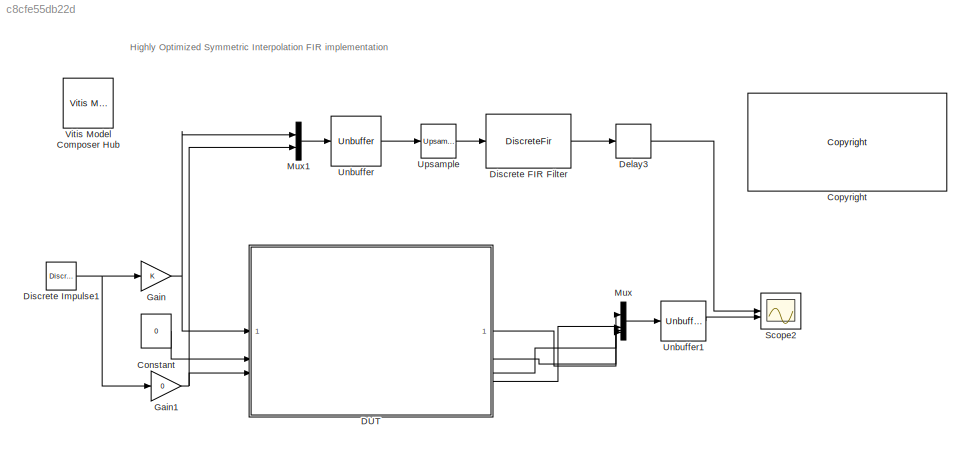
MODEL slx_c8cfe55db22d
KIND model
CONFIG AbsTol = auto
CONFIG EnableMultiTasking = off
CONFIG FixedStep = auto
CONFIG InitFcn = coef=[-58,15,80,95,52,-27,-89,-96,-43,38,97,95,32,-53,-104,-90,-18,67,109,83,1,-80,-111,-69,16,94,109,54,-38,-106,-104,-32,62,117,95,7,-89,-127,-80,23,117,134,60,-60,-148,-139,-35,102,179,140,1,-150,-213,-137,38,205,249,130,-89,-269,-286,-117,146,337,323,97,-216,-415,-362,-69,295,501,402,34,-390,-598,-440,13,497,704,479,-71,-621,-824,-517,143,766,955,554,-232,-935,-1106,-589,341,1132,1275,623,-477...<+4264ch>
CONFIG MaxStep = auto
CONFIG MinStep = auto
CONFIG RelTol = 1e-3
CONFIG SampleTimeConstraint = Unconstrained
CONFIG SolverName = VariableStepAuto
CONFIG StartTime = 0.0
CONFIG StopTime = 300E-9
BLOCK [Constant] Constant
  SampleTime = -1
  Value = 0
  VectorParams1D = off
BLOCK [Reference] <copyright redacted>
  SourceBlock = hdlUtilities/<copyright redacted>
  SourceType = Xilinx <copyright redacted>
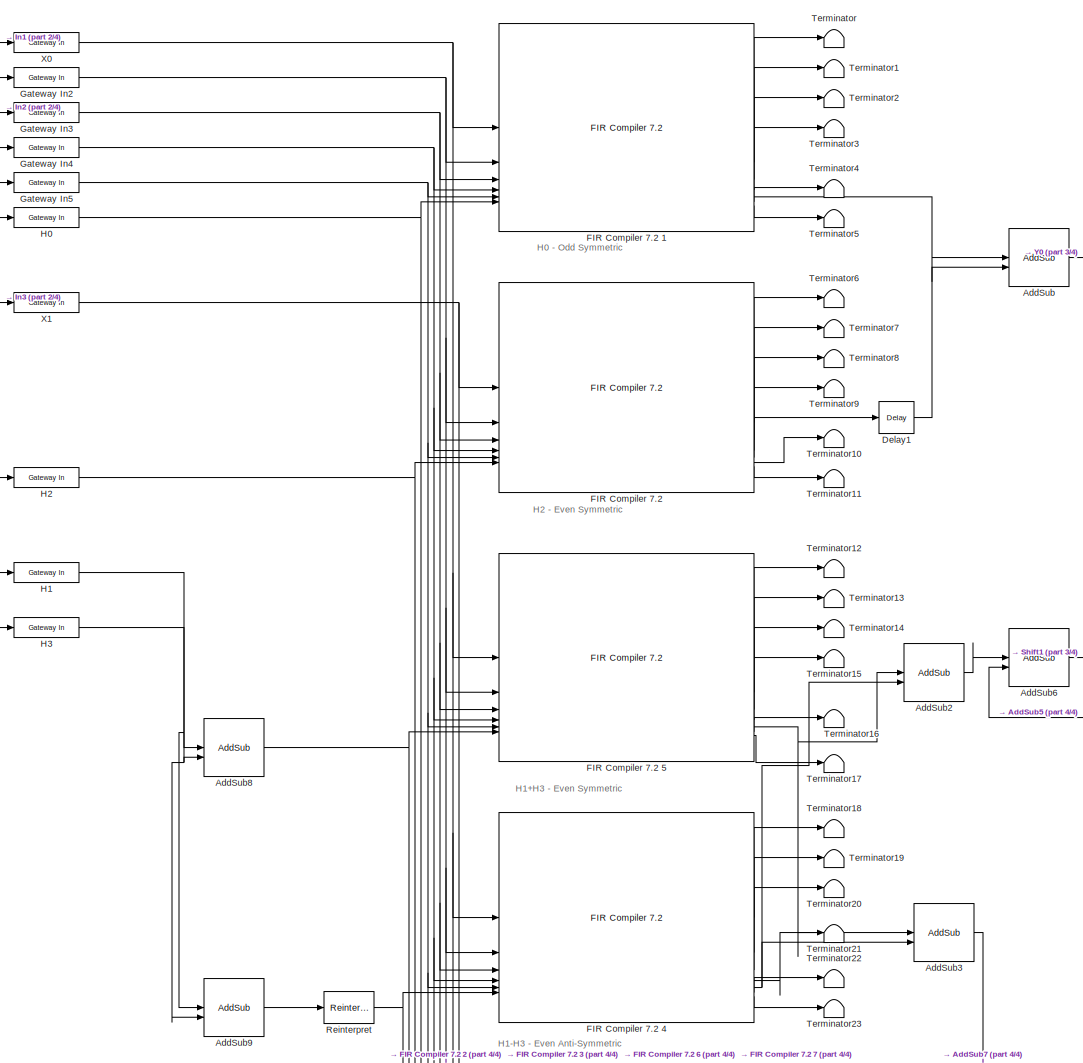
[diagram: DUT - part 1/4, top center region]
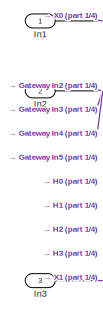
[diagram: DUT - part 2/4, top left region]
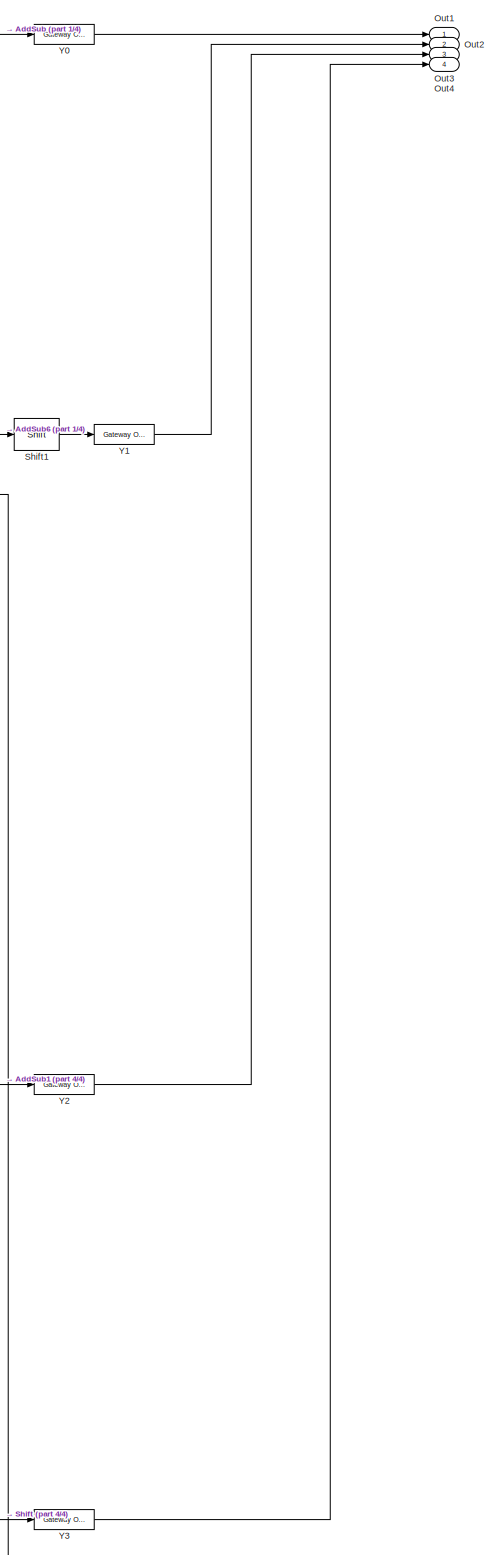
[diagram: DUT - part 3/4, middle right region]
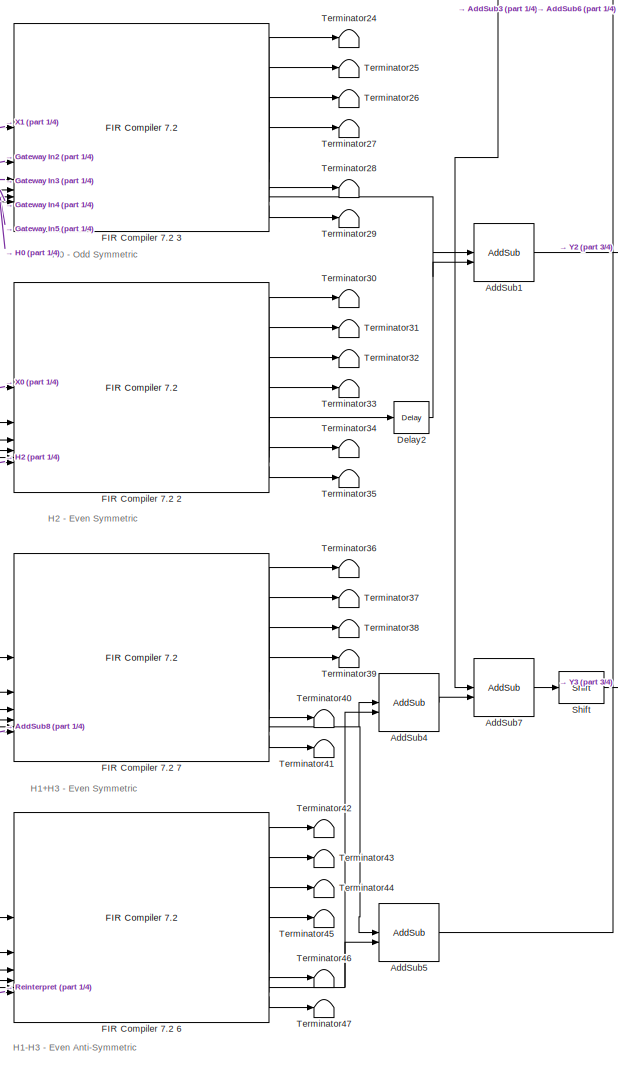
[diagram: DUT - part 4/4, bottom center region]
BLOCK [SubSystem] DUT
BLOCK [Reference] DUT/AddSub  REF=hdlBasic/AddSub
  SourceBlock = hdlBasic/AddSub
  SourceType = Adder/Subtracter Block
BLOCK [Reference] DUT/AddSub1  REF=hdlBasic/AddSub
  SourceBlock = hdlBasic/AddSub
  SourceType = Adder/Subtracter Block
BLOCK [Reference] DUT/AddSub2  REF=hdlBasic/AddSub
  SourceBlock = hdlBasic/AddSub
  SourceType = Adder/Subtracter Block
BLOCK [Reference] DUT/AddSub3  REF=hdlBasic/AddSub
  SourceBlock = hdlBasic/AddSub
  SourceType = Adder/Subtracter Block
BLOCK [Reference] DUT/AddSub4  REF=hdlBasic/AddSub
  SourceBlock = hdlBasic/AddSub
  SourceType = Adder/Subtracter Block
BLOCK [Reference] DUT/AddSub5  REF=hdlBasic/AddSub
  SourceBlock = hdlBasic/AddSub
  SourceType = Adder/Subtracter Block
BLOCK [Reference] DUT/AddSub6  REF=hdlBasic/AddSub
  SourceBlock = hdlBasic/AddSub
  SourceType = Adder/Subtracter Block
BLOCK [Reference] DUT/AddSub7  REF=hdlBasic/AddSub
  SourceBlock = hdlBasic/AddSub
  SourceType = Adder/Subtracter Block
BLOCK [Reference] DUT/AddSub8  REF=hdlBasic/AddSub
  SourceBlock = hdlBasic/AddSub
  SourceType = Adder/Subtracter Block
BLOCK [Reference] DUT/AddSub9  REF=hdlBasic/AddSub
  SourceBlock = hdlBasic/AddSub
  SourceType = Adder/Subtracter Block
BLOCK [Reference] DUT/Delay1  REF=hdlBasic/Delay
  SourceBlock = hdlBasic/Delay
  SourceType = Delay Block
BLOCK [Reference] DUT/Delay2  REF=hdlBasic/Delay
  SourceBlock = hdlBasic/Delay
  SourceType = Delay Block
BLOCK [Reference] DUT/FIR Compiler 7.2   REF=hdlDSPIP/FIR Compiler 7.2 
  SourceBlock = hdlDSPIP/FIR Compiler 7.2
  SourceType = FIR Compiler 7.2 Block
BLOCK [Reference] DUT/FIR Compiler 7.2 1  REF=hdlDSPIP/FIR Compiler 7.2 
  SourceBlock = hdlDSPIP/FIR Compiler 7.2
  SourceType = FIR Compiler 7.2 Block
BLOCK [Reference] DUT/FIR Compiler 7.2 2  REF=hdlDSPIP/FIR Compiler 7.2 
  SourceBlock = hdlDSPIP/FIR Compiler 7.2
  SourceType = FIR Compiler 7.2 Block
BLOCK [Reference] DUT/FIR Compiler 7.2 3  REF=hdlDSPIP/FIR Compiler 7.2 
  SourceBlock = hdlDSPIP/FIR Compiler 7.2
  SourceType = FIR Compiler 7.2 Block
BLOCK [Reference] DUT/FIR Compiler 7.2 4  REF=hdlDSPIP/FIR Compiler 7.2 
  SourceBlock = hdlDSPIP/FIR Compiler 7.2
  SourceType = FIR Compiler 7.2 Block
BLOCK [Reference] DUT/FIR Compiler 7.2 5  REF=hdlDSPIP/FIR Compiler 7.2 
  SourceBlock = hdlDSPIP/FIR Compiler 7.2
  SourceType = FIR Compiler 7.2 Block
BLOCK [Reference] DUT/FIR Compiler 7.2 6  REF=hdlDSPIP/FIR Compiler 7.2 
  SourceBlock = hdlDSPIP/FIR Compiler 7.2
  SourceType = FIR Compiler 7.2 Block
BLOCK [Reference] DUT/FIR Compiler 7.2 7  REF=hdlDSPIP/FIR Compiler 7.2 
  SourceBlock = hdlDSPIP/FIR Compiler 7.2
  SourceType = FIR Compiler 7.2 Block
BLOCK [Reference] DUT/Gateway In2  REF=hdlBasic/Gateway In
  SourceBlock = hdlBasic/Gateway In
  SourceType = Gateway In Block
BLOCK [Reference] DUT/Gateway In3  REF=hdlBasic/Gateway In
  SourceBlock = hdlBasic/Gateway In
  SourceType = Gateway In Block
BLOCK [Reference] DUT/Gateway In4  REF=hdlBasic/Gateway In
  SourceBlock = hdlBasic/Gateway In
  SourceType = Gateway In Block
BLOCK [Reference] DUT/Gateway In5  REF=hdlBasic/Gateway In
  SourceBlock = hdlBasic/Gateway In
  SourceType = Gateway In Block
BLOCK [Reference] DUT/H0  REF=hdlBasic/Gateway In
  SourceBlock = hdlBasic/Gateway In
  SourceType = Gateway In Block
BLOCK [Reference] DUT/H1  REF=hdlBasic/Gateway In
  SourceBlock = hdlBasic/Gateway In
  SourceType = Gateway In Block
BLOCK [Reference] DUT/H2  REF=hdlBasic/Gateway In
  SourceBlock = hdlBasic/Gateway In
  SourceType = Gateway In Block
BLOCK [Reference] DUT/H3  REF=hdlBasic/Gateway In
  SourceBlock = hdlBasic/Gateway In
  SourceType = Gateway In Block
BLOCK [Inport] DUT/In1
BLOCK [Inport] DUT/In2
  Port = 2
BLOCK [Inport] DUT/In3
  Port = 3
BLOCK [Outport] DUT/Out1
BLOCK [Outport] DUT/Out2
  Port = 2
BLOCK [Outport] DUT/Out3
  Port = 3
BLOCK [Outport] DUT/Out4
  Port = 4
BLOCK [Reference] DUT/Reinterpret  REF=hdlBasic/Reinterpret
  SourceBlock = hdlBasic/Reinterpret
  SourceType = Type Reinterpreter Block
BLOCK [Reference] DUT/Shift  REF=hdlBasic/Shift
  SourceBlock = hdlBasic/Shift
  SourceType = Binary Shift Operator Block
BLOCK [Reference] DUT/Shift1  REF=hdlBasic/Shift
  SourceBlock = hdlBasic/Shift
  SourceType = Binary Shift Operator Block
BLOCK [Terminator] DUT/Terminator
BLOCK [Terminator] DUT/Terminator1
BLOCK [Terminator] DUT/Terminator10
BLOCK [Terminator] DUT/Terminator11
BLOCK [Terminator] DUT/Terminator12
BLOCK [Terminator] DUT/Terminator13
BLOCK [Terminator] DUT/Terminator14
BLOCK [Terminator] DUT/Terminator15
BLOCK [Terminator] DUT/Terminator16
BLOCK [Terminator] DUT/Terminator17
BLOCK [Terminator] DUT/Terminator18
BLOCK [Terminator] DUT/Terminator19
BLOCK [Terminator] DUT/Terminator2
BLOCK [Terminator] DUT/Terminator20
BLOCK [Terminator] DUT/Terminator21
BLOCK [Terminator] DUT/Terminator22
BLOCK [Terminator] DUT/Terminator23
BLOCK [Terminator] DUT/Terminator24
BLOCK [Terminator] DUT/Terminator25
BLOCK [Terminator] DUT/Terminator26
BLOCK [Terminator] DUT/Terminator27
BLOCK [Terminator] DUT/Terminator28
BLOCK [Terminator] DUT/Terminator29
BLOCK [Terminator] DUT/Terminator3
BLOCK [Terminator] DUT/Terminator30
BLOCK [Terminator] DUT/Terminator31
BLOCK [Terminator] DUT/Terminator32
BLOCK [Terminator] DUT/Terminator33
BLOCK [Terminator] DUT/Terminator34
BLOCK [Terminator] DUT/Terminator35
BLOCK [Terminator] DUT/Terminator36
BLOCK [Terminator] DUT/Terminator37
BLOCK [Terminator] DUT/Terminator38
BLOCK [Terminator] DUT/Terminator39
BLOCK [Terminator] DUT/Terminator4
BLOCK [Terminator] DUT/Terminator40
BLOCK [Terminator] DUT/Terminator41
BLOCK [Terminator] DUT/Terminator42
BLOCK [Terminator] DUT/Terminator43
BLOCK [Terminator] DUT/Terminator44
BLOCK [Terminator] DUT/Terminator45
BLOCK [Terminator] DUT/Terminator46
BLOCK [Terminator] DUT/Terminator47
BLOCK [Terminator] DUT/Terminator5
BLOCK [Terminator] DUT/Terminator6
BLOCK [Terminator] DUT/Terminator7
BLOCK [Terminator] DUT/Terminator8
BLOCK [Terminator] DUT/Terminator9
BLOCK [Reference] DUT/X0  REF=hdlBasic/Gateway In
  SourceBlock = hdlBasic/Gateway In
  SourceType = Gateway In Block
BLOCK [Reference] DUT/X1  REF=hdlBasic/Gateway In
  SourceBlock = hdlBasic/Gateway In
  SourceType = Gateway In Block
BLOCK [Reference] DUT/Y0  REF=hdlBasic/Gateway Out
  SourceBlock = hdlBasic/Gateway Out
  SourceType = Gateway Out Block
BLOCK [Reference] DUT/Y1  REF=hdlBasic/Gateway Out
  SourceBlock = hdlBasic/Gateway Out
  SourceType = Gateway Out Block
BLOCK [Reference] DUT/Y2  REF=hdlBasic/Gateway Out
  SourceBlock = hdlBasic/Gateway Out
  SourceType = Gateway Out Block
BLOCK [Reference] DUT/Y3  REF=hdlBasic/Gateway Out
  SourceBlock = hdlBasic/Gateway Out
  SourceType = Gateway Out Block
BLOCK [Delay] Delay3
  DelayLength = 188
  InputPortMap = u0
BLOCK [DiscreteFir] Discrete FIR Filter
  Coefficients = coef(:,1)'
  InputPortMap = u0
  InputProcessing = Columns as channels (frame based)
  OutputPortMap = o0
BLOCK [Reference] Discrete Impulse1  REF=dspsrcs4/Discrete 
Impulse
  SourceBlock = dspsrcs4/Discrete \nImpulse
  SourceType = Discrete Impulse
BLOCK [Gain] Gain
BLOCK [Gain] Gain1
  Gain = 0
BLOCK [Mux] Mux
  DisplayOption = bar
BLOCK [Mux] Mux1
  DisplayOption = bar
  Inputs = 2
BLOCK [Scope] Scope2
  Floating = off
  NumInputPorts = 2
  ScopeSpecificationString = Simulink.scopes.TimeScopeBlockCfg('CurrentConfiguration', extmgr.ConfigurationSet(extmgr.Configuration('Core','General UI',true,'DisplayFullSourceName',false,'ShowMainToolbar',true),extmgr.Configuration('Sources','WiredSimulink',true,'DataLogging',false,'DataLoggingVariableName','ScopeData2','DataLoggingLimitDataPoints',false,'DataLoggingMaxPoints','5000','DataLoggingDecimateData',false,'DataLoggi...<+2772ch>
BLOCK [Unbuffer] Unbuffer
BLOCK [Unbuffer] Unbuffer1
BLOCK [Reference] Upsample  REF=dspsigops/Upsample
  SourceBlock = dspsigops/Upsample
  SourceType = Upsample
  UserDataPersistent = on
BLOCK [Reference] Vitis Model Composer Hub  REF=vmcUtilities/Vitis Model Composer Hub
  SourceBlock = vmcUtilities/Vitis Model Composer Hub
  SourceType = VMC Hub
  Tag = genX
  UserDataPersistent = on
ANNOTATION (root): Highly Optimized Symmetric Interpolation FIR implementation
ANNOTATION DUT: H0 - Odd Symmetric
ANNOTATION DUT: H1+H3 - Even Symmetric
ANNOTATION DUT: H1-H3 - Even Anti-Symmetric
ANNOTATION DUT: H2 - Even Symmetric
LINE Constant:1 -> DUT:2
LINE DUT/AddSub1:1 -> DUT/Y2:1
LINE DUT/AddSub2:1 -> DUT/AddSub6:1
LINE DUT/AddSub3:1 -> DUT/AddSub7:1
LINE DUT/AddSub4:1 -> DUT/AddSub7:2
LINE DUT/AddSub5:1 -> DUT/AddSub6:2
LINE DUT/AddSub6:1 -> DUT/Shift1:1
LINE DUT/AddSub7:1 -> DUT/Shift:1
NET DUT/AddSub8:1 -> DUT/FIR Compiler 7.2 5:6, DUT/FIR Compiler 7.2 7:6
LINE DUT/AddSub9:1 -> DUT/Reinterpret:1
LINE DUT/AddSub:1 -> DUT/Y0:1
LINE DUT/Delay1:1 -> DUT/AddSub:2
LINE DUT/Delay2:1 -> DUT/AddSub1:2
LINE DUT/FIR Compiler 7.2 1:1 -> DUT/Terminator:1
LINE DUT/FIR Compiler 7.2 1:2 -> DUT/Terminator1:1
LINE DUT/FIR Compiler 7.2 1:3 -> DUT/Terminator2:1
LINE DUT/FIR Compiler 7.2 1:4 -> DUT/Terminator3:1
LINE DUT/FIR Compiler 7.2 1:5 -> DUT/AddSub:1
LINE DUT/FIR Compiler 7.2 1:6 -> DUT/Terminator4:1
LINE DUT/FIR Compiler 7.2 1:7 -> DUT/Terminator5:1
LINE DUT/FIR Compiler 7.2 2:1 -> DUT/Terminator30:1
LINE DUT/FIR Compiler 7.2 2:2 -> DUT/Terminator31:1
LINE DUT/FIR Compiler 7.2 2:3 -> DUT/Terminator32:1
LINE DUT/FIR Compiler 7.2 2:4 -> DUT/Terminator33:1
LINE DUT/FIR Compiler 7.2 2:5 -> DUT/Delay2:1
LINE DUT/FIR Compiler 7.2 2:6 -> DUT/Terminator34:1
LINE DUT/FIR Compiler 7.2 2:7 -> DUT/Terminator35:1
LINE DUT/FIR Compiler 7.2 3:1 -> DUT/Terminator24:1
LINE DUT/FIR Compiler 7.2 3:2 -> DUT/Terminator25:1
LINE DUT/FIR Compiler 7.2 3:3 -> DUT/Terminator26:1
LINE DUT/FIR Compiler 7.2 3:4 -> DUT/Terminator27:1
LINE DUT/FIR Compiler 7.2 3:5 -> DUT/AddSub1:1
LINE DUT/FIR Compiler 7.2 3:6 -> DUT/Terminator28:1
LINE DUT/FIR Compiler 7.2 3:7 -> DUT/Terminator29:1
LINE DUT/FIR Compiler 7.2 4:1 -> DUT/Terminator18:1
LINE DUT/FIR Compiler 7.2 4:2 -> DUT/Terminator19:1
LINE DUT/FIR Compiler 7.2 4:3 -> DUT/Terminator20:1
LINE DUT/FIR Compiler 7.2 4:4 -> DUT/Terminator21:1
NET DUT/FIR Compiler 7.2 4:5 -> DUT/AddSub2:2, DUT/AddSub3:2
LINE DUT/FIR Compiler 7.2 4:6 -> DUT/Terminator22:1
LINE DUT/FIR Compiler 7.2 4:7 -> DUT/Terminator23:1
LINE DUT/FIR Compiler 7.2 5:1 -> DUT/Terminator12:1
LINE DUT/FIR Compiler 7.2 5:2 -> DUT/Terminator13:1
LINE DUT/FIR Compiler 7.2 5:3 -> DUT/Terminator14:1
LINE DUT/FIR Compiler 7.2 5:4 -> DUT/Terminator15:1
NET DUT/FIR Compiler 7.2 5:5 -> DUT/AddSub2:1, DUT/AddSub3:1
LINE DUT/FIR Compiler 7.2 5:6 -> DUT/Terminator16:1
LINE DUT/FIR Compiler 7.2 5:7 -> DUT/Terminator17:1
LINE DUT/FIR Compiler 7.2 6:1 -> DUT/Terminator42:1
LINE DUT/FIR Compiler 7.2 6:2 -> DUT/Terminator43:1
LINE DUT/FIR Compiler 7.2 6:3 -> DUT/Terminator44:1
LINE DUT/FIR Compiler 7.2 6:4 -> DUT/Terminator45:1
NET DUT/FIR Compiler 7.2 6:5 -> DUT/AddSub4:2, DUT/AddSub5:2
LINE DUT/FIR Compiler 7.2 6:6 -> DUT/Terminator46:1
LINE DUT/FIR Compiler 7.2 6:7 -> DUT/Terminator47:1
LINE DUT/FIR Compiler 7.2 7:1 -> DUT/Terminator36:1
LINE DUT/FIR Compiler 7.2 7:2 -> DUT/Terminator37:1
LINE DUT/FIR Compiler 7.2 7:3 -> DUT/Terminator38:1
LINE DUT/FIR Compiler 7.2 7:4 -> DUT/Terminator39:1
NET DUT/FIR Compiler 7.2 7:5 -> DUT/AddSub4:1, DUT/AddSub5:1
LINE DUT/FIR Compiler 7.2 7:6 -> DUT/Terminator40:1
LINE DUT/FIR Compiler 7.2 7:7 -> DUT/Terminator41:1
LINE DUT/FIR Compiler 7.2 :1 -> DUT/Terminator6:1
LINE DUT/FIR Compiler 7.2 :2 -> DUT/Terminator7:1
LINE DUT/FIR Compiler 7.2 :3 -> DUT/Terminator8:1
LINE DUT/FIR Compiler 7.2 :4 -> DUT/Terminator9:1
LINE DUT/FIR Compiler 7.2 :5 -> DUT/Delay1:1
LINE DUT/FIR Compiler 7.2 :6 -> DUT/Terminator10:1
LINE DUT/FIR Compiler 7.2 :7 -> DUT/Terminator11:1
NET DUT/Gateway In2:1 -> DUT/FIR Compiler 7.2 1:2, DUT/FIR Compiler 7.2 2:2, DUT/FIR Compiler 7.2 3:2, DUT/FIR Compiler 7.2 4:2, DUT/FIR Compiler 7.2 5:2, DUT/FIR Compiler 7.2 6:2, DUT/FIR Compiler 7.2 7:2, DUT/FIR Compiler 7.2 :2
NET DUT/Gateway In3:1 -> DUT/FIR Compiler 7.2 1:3, DUT/FIR Compiler 7.2 2:3, DUT/FIR Compiler 7.2 3:3, DUT/FIR Compiler 7.2 4:3, DUT/FIR Compiler 7.2 5:3, DUT/FIR Compiler 7.2 6:3, DUT/FIR Compiler 7.2 7:3, DUT/FIR Compiler 7.2 :3
NET DUT/Gateway In4:1 -> DUT/FIR Compiler 7.2 1:4, DUT/FIR Compiler 7.2 2:4, DUT/FIR Compiler 7.2 3:4, DUT/FIR Compiler 7.2 4:4, DUT/FIR Compiler 7.2 5:4, DUT/FIR Compiler 7.2 6:4, DUT/FIR Compiler 7.2 7:4, DUT/FIR Compiler 7.2 :4
NET DUT/Gateway In5:1 -> DUT/FIR Compiler 7.2 1:5, DUT/FIR Compiler 7.2 2:5, DUT/FIR Compiler 7.2 3:5, DUT/FIR Compiler 7.2 4:5, DUT/FIR Compiler 7.2 5:5, DUT/FIR Compiler 7.2 6:5, DUT/FIR Compiler 7.2 7:5, DUT/FIR Compiler 7.2 :5
NET DUT/H0:1 -> DUT/FIR Compiler 7.2 1:6, DUT/FIR Compiler 7.2 3:6
NET DUT/H1:1 -> DUT/AddSub8:1, DUT/AddSub9:1
NET DUT/H2:1 -> DUT/FIR Compiler 7.2 2:6, DUT/FIR Compiler 7.2 :6
NET DUT/H3:1 -> DUT/AddSub8:2, DUT/AddSub9:2
LINE DUT/In1:1 -> DUT/X0:1
NET DUT/In2:1 -> DUT/Gateway In2:1, DUT/Gateway In3:1, DUT/Gateway In4:1, DUT/Gateway In5:1, DUT/H0:1, DUT/H1:1, DUT/H2:1, DUT/H3:1
LINE DUT/In3:1 -> DUT/X1:1
NET DUT/Reinterpret:1 -> DUT/FIR Compiler 7.2 4:6, DUT/FIR Compiler 7.2 6:6
LINE DUT/Shift1:1 -> DUT/Y1:1
LINE DUT/Shift:1 -> DUT/Y3:1
NET DUT/X0:1 -> DUT/FIR Compiler 7.2 1:1, DUT/FIR Compiler 7.2 2:1, DUT/FIR Compiler 7.2 4:1, DUT/FIR Compiler 7.2 5:1
NET DUT/X1:1 -> DUT/FIR Compiler 7.2 3:1, DUT/FIR Compiler 7.2 6:1, DUT/FIR Compiler 7.2 7:1, DUT/FIR Compiler 7.2 :1
LINE DUT/Y0:1 -> DUT/Out1:1
LINE DUT/Y1:1 -> DUT/Out2:1
LINE DUT/Y2:1 -> DUT/Out3:1
LINE DUT/Y3:1 -> DUT/Out4:1
LINE DUT:1 -> Mux:1
LINE DUT:2 -> Mux:2
LINE DUT:3 -> Mux:3
LINE DUT:4 -> Mux:4
LINE Delay3:1 -> Scope2:1
LINE Discrete FIR Filter:1 -> Delay3:1
NET Discrete Impulse1:1 -> Gain1:1, Gain:1
NET Gain1:1 -> DUT:3, Mux1:2
NET Gain:1 -> DUT:1, Mux1:1
LINE Mux1:1 -> Unbuffer:1
LINE Mux:1 -> Unbuffer1:1
LINE Unbuffer1:1 -> Scope2:2
LINE Unbuffer:1 -> Upsample:1
LINE Upsample:1 -> Discrete FIR Filter:1
note: NET lines group one-source signal fan-out (src -> all destinations, sorted); 1:1 wires keep LINE
